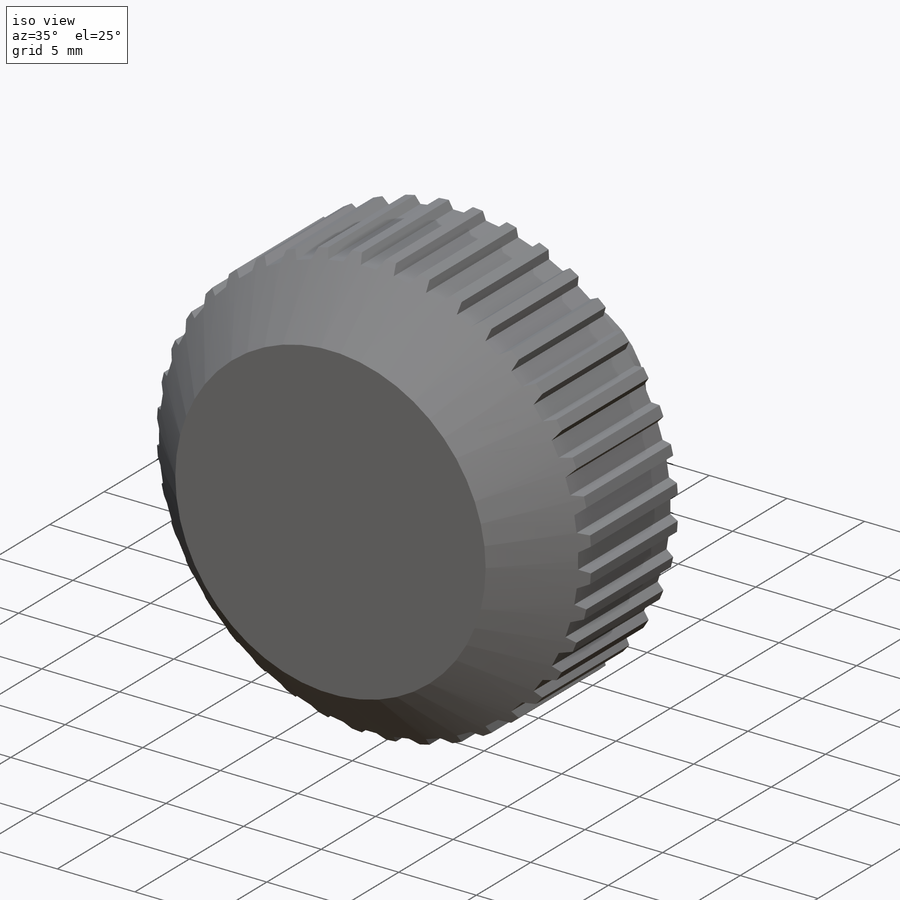
[diagram: iso view]
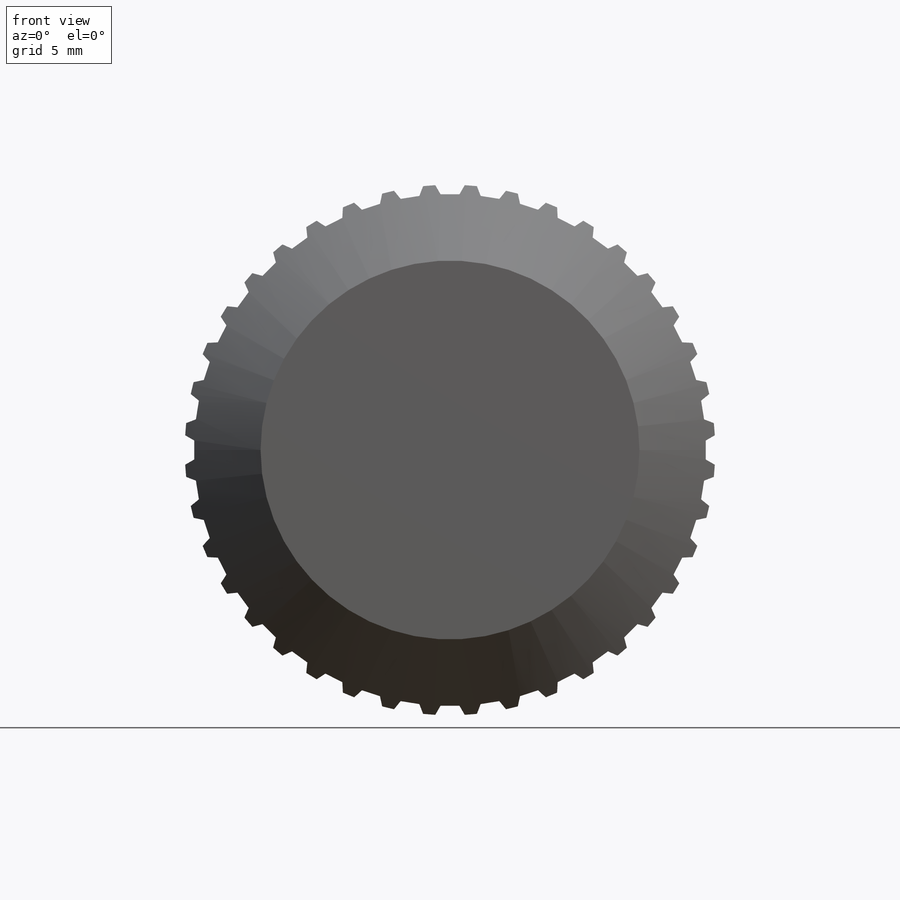
[diagram: front view]
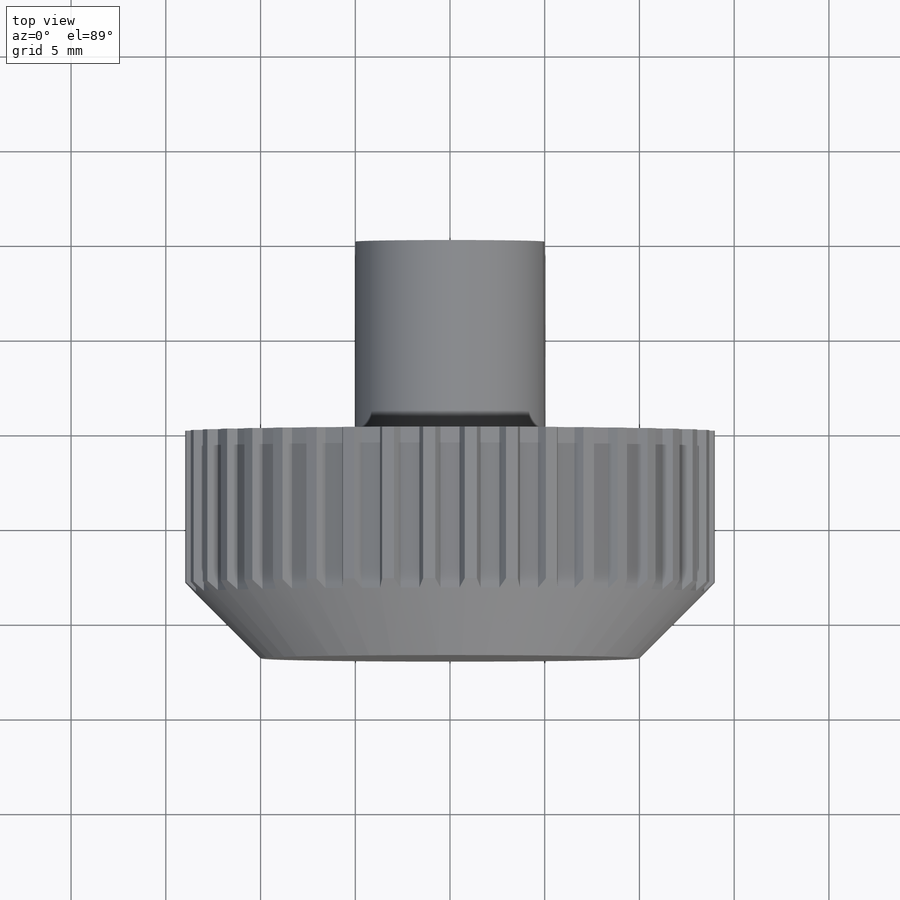
[diagram: top view]
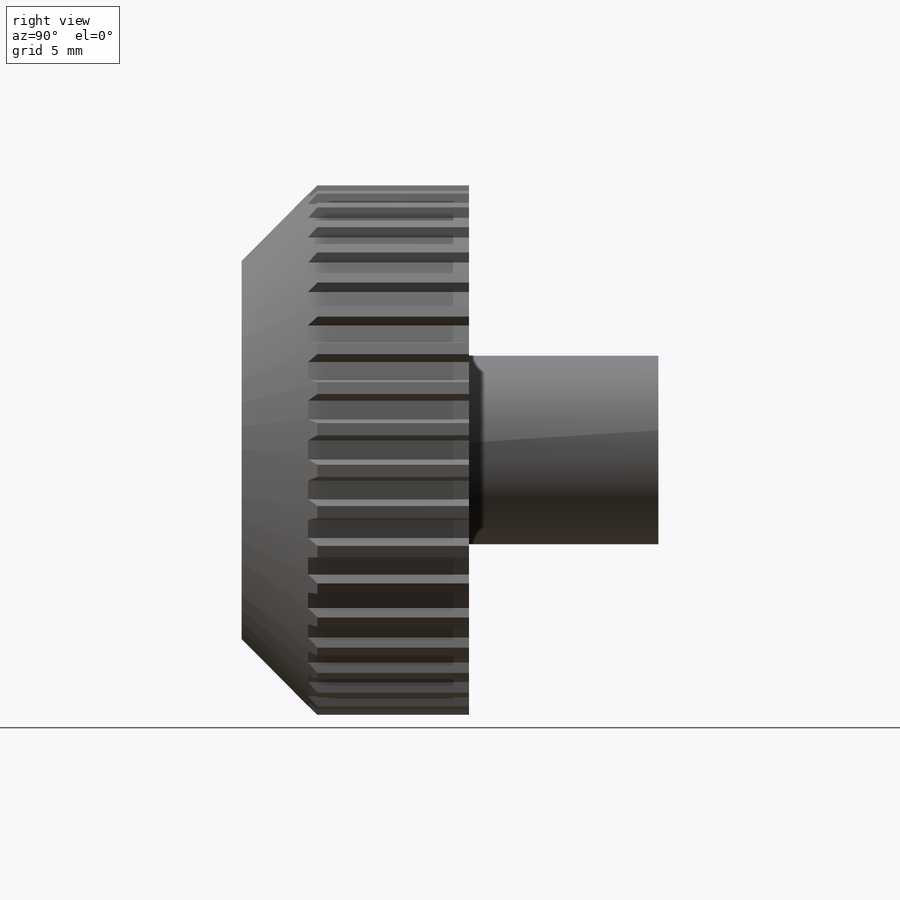
[diagram: right view]
SOLIDWORKS PART (.sldprt)
format: sldprt  version: not decoded by parser v0  size: 425,984 bytes
history: native  units: mm
features: sketch x9, plane x3, extrude x3, cut_extrude x3, material x1, pattern_circular x1, cut_revolve x1 (+8 scaffold rows collapsed)
feature tree (29):
  scaffold x8  (default folders/planes/origin — collapsed)
  material  "Matériau <non spécifié>"
  plane  "Plan de face"
  plane  "Plan de dessus"
  plane  "Plan de droite"
  sketch  "Esquisse1"  dims[D1=28.0mm]
  extrude  "Boss.-Extru.1"  Depth=12mm
  sketch  "Esquisse2"  dims[c1.D1=~3.002191mm c2.D1=60.0deg c2.D2=~3.002191mm c3.D2=120.0deg c3.D3=1.0mm c3.D4=0.5mm c3.D5=13.5mm c3.D6=2.0mm]
  cut_extrude  "Enlèv. mat.-Extru.1"  [1 undecoded]
  sketch  "Esquisse3"
  sketch  "Esquisse4"
  pattern_circular  "Répétition circulaire1"  Count=40 Angle=360deg
  sketch  "Esquisse5"  dims[D1=14.0mm D2=12.0mm D3=4.0mm D4=4.0mm]
  cut_revolve  "Enlèvement de matière-Révolution1"  Angle=360deg
  sketch  "Esquisse6"  dims[D1=24.0mm]
  cut_extrude  "Enlèv. mat.-Extru.2"  Depth=6mm
  sketch  "Esquisse7"  dims[D1=10.0mm]
  extrude  "Boss.-Extru.2"  Depth=16mm
  sketch  "Esquisse8"  dims[D1=6.2mm]
  cut_extrude  "Enlèv. mat.-Extru.3"  Depth=10mm
  sketch  "Esquisse9"  dims[D1=1.5mm]
  extrude  "Boss.-Extru.3"  Depth=6mm
decode coverage: 14 of 17 modeling features carry decoded parameters
note: ~ marks probable driven/reference dimensions
note: 1 parameter value undecoded
note: suppression state not decoded; provenance and decode notes live in map.json
